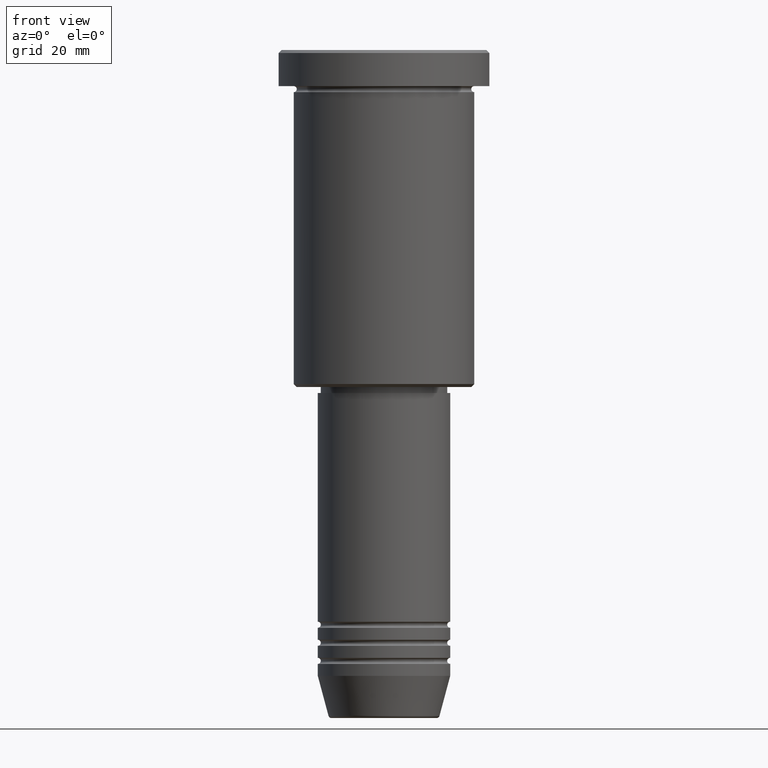
[diagram: clean part render]
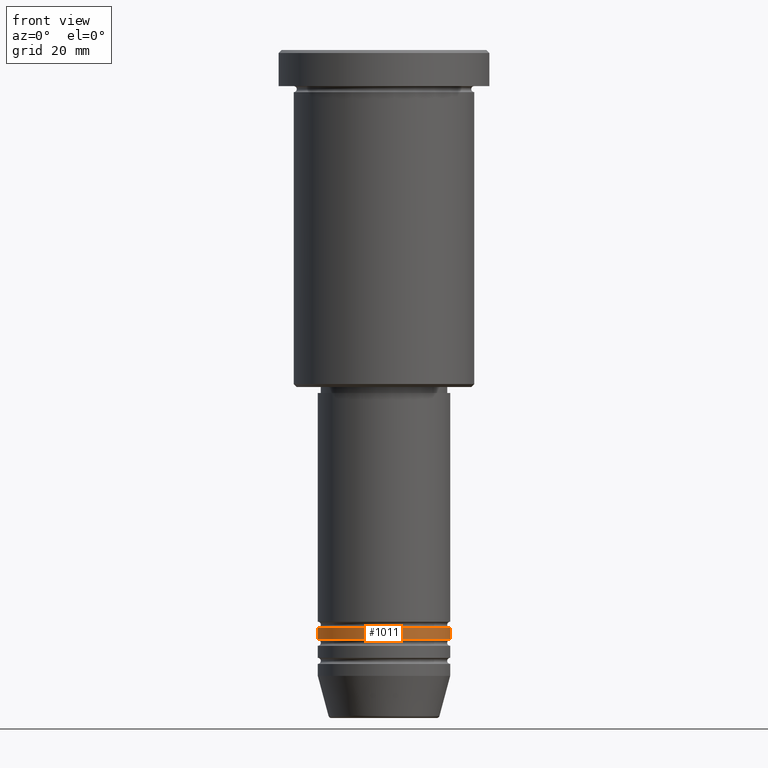
[diagram: same view with one face highlighted and labeled with its STEP entity id]
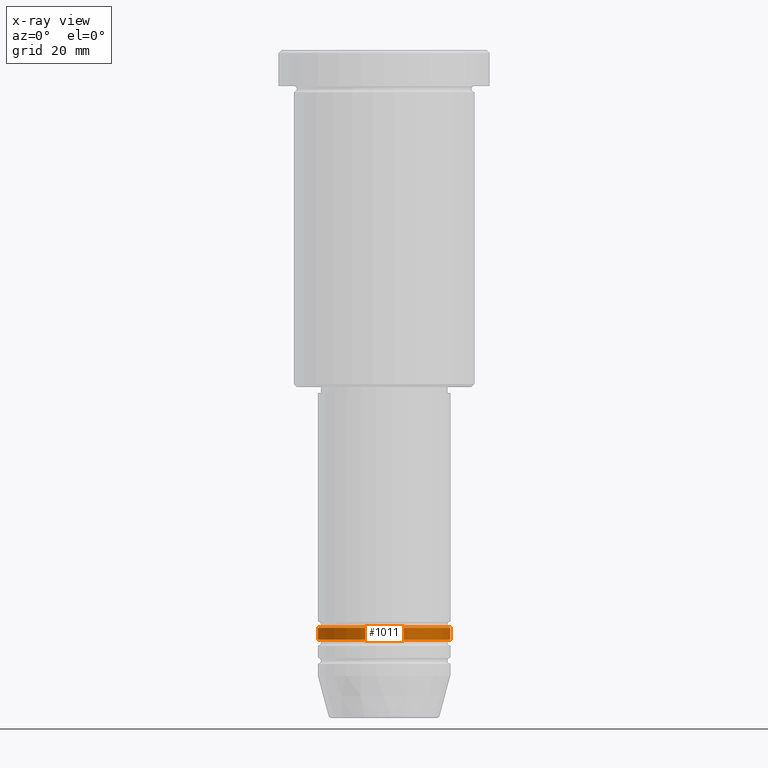
[diagram: x-ray of the same camera — body ghosted, the highlighted face saturated]
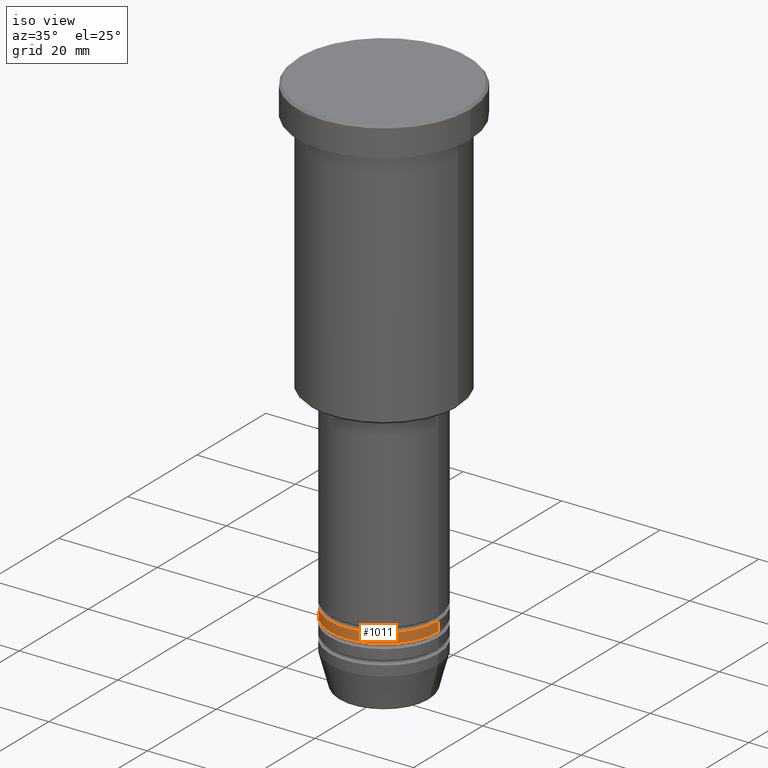
[diagram: same view with one face highlighted and labeled with its STEP entity id]
A machine part, front view. The second image highlights one B-rep face of the part: STEP entity #1011.
The next image is the same camera in x-ray: the body ghosted, the highlighted face saturated — about 0% of this face is hidden behind the body in this view.
A second angle (iso view) of the same face is appended — the face is thin or edge-on in the first view.
In plain terms, the highlighted cylindrical surface (partial cylindrical patch) has radius 11 mm, axis along (-0, -0, 1).
Its self-contained STEP definition (entity closure, byte-faithful):
#15 = EDGE_CURVE ( 'NONE', #706, #273, #631, .T. ) ;
#50 = EDGE_CURVE ( 'NONE', #273, #1039, #700, .T. ) ;
#66 = CARTESIAN_POINT ( 'NONE',  ( 11.00000000000000000, 0.000000000000000000, 0.000000000000000000 ) ) ;
#78 = CARTESIAN_POINT ( 'NONE',  ( 11.00000000000000000, 0.000000000000000000, -97.99999999999997158 ) ) ;
#104 = CARTESIAN_POINT ( 'NONE',  ( 0.000000000000000000, 0.000000000000000000, -95.99999999999998579 ) ) ;
#164 = DIRECTION ( 'NONE',  ( 1.000000000000000000, 0.000000000000000000, 0.000000000000000000 ) ) ;
#170 = AXIS2_PLACEMENT_3D ( 'NONE', #431, #346, #164 ) ;
#173 = AXIS2_PLACEMENT_3D ( 'NONE', #425, #403, #880 ) ;
#273 = VERTEX_POINT ( 'NONE', #734 ) ;
#305 = CIRCLE ( 'NONE', #170, 11.00000000000000000 ) ;
#335 = CYLINDRICAL_SURFACE ( 'NONE', #173, 11.00000000000000000 ) ;
#340 = VECTOR ( 'NONE', #369, 1000.000000000000000 ) ;
#346 = DIRECTION ( 'NONE',  ( -0.000000000000000000, -0.000000000000000000, 1.000000000000000000 ) ) ;
#369 = DIRECTION ( 'NONE',  ( -0.000000000000000000, -0.000000000000000000, 1.000000000000000000 ) ) ;
#403 = DIRECTION ( 'NONE',  ( -0.000000000000000000, -0.000000000000000000, 1.000000000000000000 ) ) ;
#425 = CARTESIAN_POINT ( 'NONE',  ( 0.000000000000000000, 0.000000000000000000, 0.000000000000000000 ) ) ;
#431 = CARTESIAN_POINT ( 'NONE',  ( 0.000000000000000000, 0.000000000000000000, -97.99999999999997158 ) ) ;
#496 = ORIENTED_EDGE ( 'NONE', *, *, #50, .F. ) ;
#553 = DIRECTION ( 'NONE',  ( -0.000000000000000000, -0.000000000000000000, 1.000000000000000000 ) ) ;
#631 = LINE ( 'NONE', #833, #340 ) ;
#700 = CIRCLE ( 'NONE', #996, 11.00000000000000000 ) ;
#706 = VERTEX_POINT ( 'NONE', #980 ) ;
#715 = VERTEX_POINT ( 'NONE', #78 ) ;
#726 = LINE ( 'NONE', #66, #1094 ) ;
#734 = CARTESIAN_POINT ( 'NONE',  ( -11.00000000000000000, 1.347111479062088405E-15, -95.99999999999998579 ) ) ;
#765 = FACE_OUTER_BOUND ( 'NONE', #855, .T. ) ;
#789 = CARTESIAN_POINT ( 'NONE',  ( 11.00000000000000000, 0.000000000000000000, -95.99999999999998579 ) ) ;
#804 = EDGE_CURVE ( 'NONE', #715, #1039, #726, .T. ) ;
#809 = EDGE_CURVE ( 'NONE', #706, #715, #305, .T. ) ;
#833 = CARTESIAN_POINT ( 'NONE',  ( -11.00000000000000000, 1.347111479062088405E-15, 0.000000000000000000 ) ) ;
#855 = EDGE_LOOP ( 'NONE', ( #1164, #934, #878, #496 ) ) ;
#878 = ORIENTED_EDGE ( 'NONE', *, *, #804, .T. ) ;
#880 = DIRECTION ( 'NONE',  ( 1.000000000000000000, 0.000000000000000000, 0.000000000000000000 ) ) ;
#916 = DIRECTION ( 'NONE',  ( 1.000000000000000000, 0.000000000000000000, 0.000000000000000000 ) ) ;
#934 = ORIENTED_EDGE ( 'NONE', *, *, #809, .T. ) ;
#980 = CARTESIAN_POINT ( 'NONE',  ( -11.00000000000000000, 1.347111479062088405E-15, -97.99999999999997158 ) ) ;
#996 = AXIS2_PLACEMENT_3D ( 'NONE', #104, #553, #916 ) ;
#1011 = ADVANCED_FACE ( 'NONE', ( #765 ), #335, .T. ) ;
#1039 = VERTEX_POINT ( 'NONE', #789 ) ;
#1081 = DIRECTION ( 'NONE',  ( -0.000000000000000000, -0.000000000000000000, 1.000000000000000000 ) ) ;
#1094 = VECTOR ( 'NONE', #1081, 1000.000000000000000 ) ;
#1164 = ORIENTED_EDGE ( 'NONE', *, *, #15, .F. ) ;